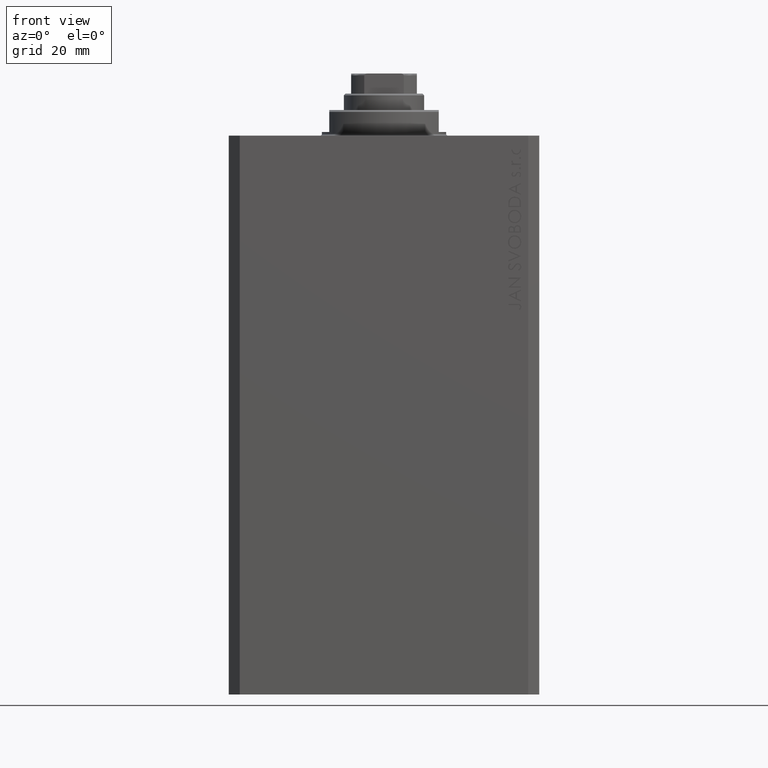
[diagram: clean part render]
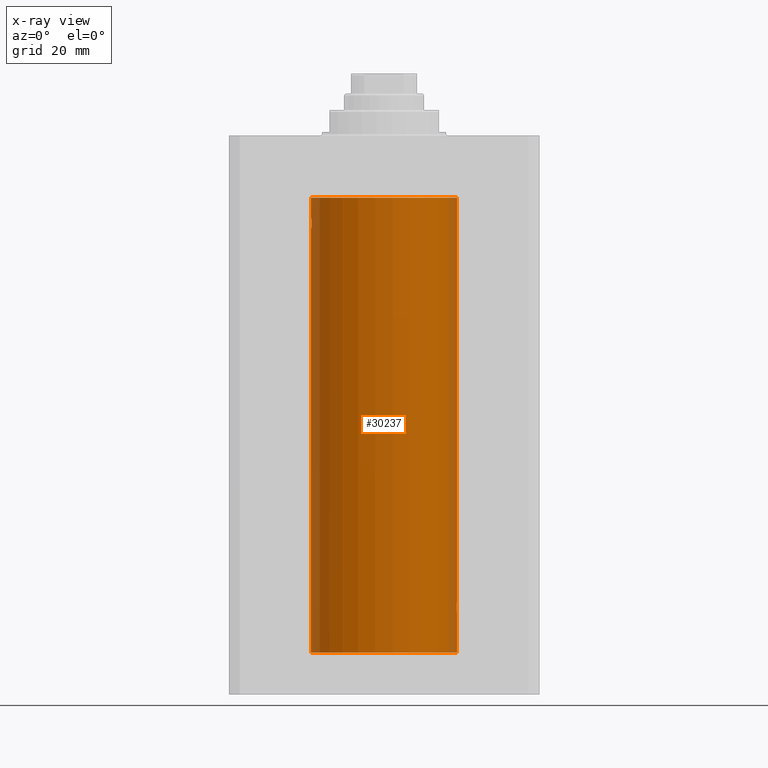
[diagram: x-ray — body ghosted, one internal face saturated and labeled with its STEP entity id]
A machine part, front view, then the same camera in x-ray: the body is ghosted and one INTERNAL B-rep face — a face not visible from any outside direction — is saturated and labeled: STEP entity #30237.
In plain terms, the highlighted cylindrical surface (partial cylindrical patch) has radius 20 mm, axis along (0, 0, 1).
Its self-contained STEP definition (entity closure, byte-faithful):
#147 = LINE ( 'NONE', #367, #17304 ) ;
#262 = FACE_OUTER_BOUND ( 'NONE', #30989, .T. ) ;
#352 = CARTESIAN_POINT ( 'NONE',  ( -20.00000000000000000, 2.449293598294706513E-15, -141.5999999999999943 ) ) ;
#367 = CARTESIAN_POINT ( 'NONE',  ( 20.00000000000000000, 0.000000000000000000, -141.5999999999999943 ) ) ;
#529 = EDGE_CURVE ( 'NONE', #33822, #23963, #44422, .T. ) ;
#1146 = CARTESIAN_POINT ( 'NONE',  ( -20.00000000000000000, -1.269718202421245235E-16, -22.00000000000000000 ) ) ;
#1905 = ORIENTED_EDGE ( 'NONE', *, *, #20098, .F. ) ;
#2066 = CARTESIAN_POINT ( 'NONE',  ( -20.00000000000000000, 2.449293598294706513E-15, -141.5999999999999943 ) ) ;
#3861 = CARTESIAN_POINT ( 'NONE',  ( 0.000000000000000000, 0.000000000000000000, -141.5999999999999943 ) ) ;
#3868 = CARTESIAN_POINT ( 'NONE',  ( 19.92464121718640868, -1.736076547215880561, -130.0015422135783751 ) ) ;
#5318 = CARTESIAN_POINT ( 'NONE',  ( 20.00000000000000000, -0.2612062508298598207, -127.0000000000000853 ) ) ;
#6661 = CIRCLE ( 'NONE', #40493, 20.00000000000000000 ) ;
#6778 = ORIENTED_EDGE ( 'NONE', *, *, #29489, .F. ) ;
#6892 = DIRECTION ( 'NONE',  ( -0.000000000000000000, -0.000000000000000000, 1.000000000000000000 ) ) ;
#7030 = CARTESIAN_POINT ( 'NONE',  ( -19.90987429971497491, -1.897222639860592031, -24.64630673924644100 ) ) ;
#7246 = CARTESIAN_POINT ( 'NONE',  ( 19.93674030556023524, -1.591123942389848223, -130.2187588700503227 ) ) ;
#7442 = EDGE_CURVE ( 'NONE', #39911, #13682, #42872, .T. ) ;
#7680 = CYLINDRICAL_SURFACE ( 'NONE', #29375, 20.00000000000000000 ) ;
#9046 = CARTESIAN_POINT ( 'NONE',  ( -20.00000000000000000, 2.449293598294706513E-15, -141.5999999999999943 ) ) ;
#9555 = CARTESIAN_POINT ( 'NONE',  ( -20.00000000000000000, -1.269718202421245235E-16, -22.00000000000000000 ) ) ;
#9958 = CARTESIAN_POINT ( 'NONE',  ( -19.92471783160912224, -1.735203193119891019, -25.00306556339602082 ) ) ;
#9970 = EDGE_CURVE ( 'NONE', #14376, #27112, #18638, .T. ) ;
#10416 = CARTESIAN_POINT ( 'NONE',  ( -19.96307487248084911, -1.228758402364232172, -25.59941524884030528 ) ) ;
#10614 = DIRECTION ( 'NONE',  ( -0.000000000000000000, -0.000000000000000000, 1.000000000000000000 ) ) ;
#10635 = CARTESIAN_POINT ( 'NONE',  ( -19.92459705242980661, -1.736582545981369519, -22.99932780860755699 ) ) ;
#10879 = DIRECTION ( 'NONE',  ( 1.000000000000000000, 0.000000000000000000, 0.000000000000000000 ) ) ;
#11632 = CARTESIAN_POINT ( 'NONE',  ( 0.000000000000000000, 0.000000000000000000, -17.00000000000000000 ) ) ;
#12535 = CARTESIAN_POINT ( 'NONE',  ( 19.96304361591165133, -1.229269670911809609, -127.4009562492831833 ) ) ;
#13122 = CARTESIAN_POINT ( 'NONE',  ( -19.99457699142850231, -0.5243189001515002889, -25.94755062882507346 ) ) ;
#13323 = CARTESIAN_POINT ( 'NONE',  ( 20.00000000000000000, 3.320656427414327395E-15, -131.0000000000000000 ) ) ;
#13572 = CARTESIAN_POINT ( 'NONE',  ( -20.00000000000000000, 2.449293582768784389E-15, -25.99999999999999645 ) ) ;
#13682 = VERTEX_POINT ( 'NONE', #16874 ) ;
#13883 = CARTESIAN_POINT ( 'NONE',  ( 19.94343050116685134, -1.506032346525476795, -127.6775485712697247 ) ) ;
#14027 = CARTESIAN_POINT ( 'NONE',  ( -19.91908554465556946, -1.797933656607911823, -23.11420923329271560 ) ) ;
#14234 = CARTESIAN_POINT ( 'NONE',  ( 19.91912874598169125, -1.797456133345315177, -129.8867487037038302 ) ) ;
#14376 = VERTEX_POINT ( 'NONE', #44026 ) ;
#14519 = EDGE_CURVE ( 'NONE', #33822, #35958, #6661, .T. ) ;
#15230 = DIRECTION ( 'NONE',  ( 1.000000000000000000, 0.000000000000000000, 0.000000000000000000 ) ) ;
#16817 = CARTESIAN_POINT ( 'NONE',  ( 19.90983652367462042, -1.897617924364794151, -128.3548402033379716 ) ) ;
#16874 = CARTESIAN_POINT ( 'NONE',  ( -20.00000000000000000, 2.449293598294706513E-15, -17.00000000000000000 ) ) ;
#16960 = CARTESIAN_POINT ( 'NONE',  ( -19.90603968831098669, -1.936551476643001646, -23.48351467081094057 ) ) ;
#17033 = CARTESIAN_POINT ( 'NONE',  ( 19.91915476385080197, -1.797169352086254390, -128.1126628205572331 ) ) ;
#17264 = CARTESIAN_POINT ( 'NONE',  ( 19.89974874213243794, -1.999999999999655609, -128.8677987384940309 ) ) ;
#17304 = VECTOR ( 'NONE', #21334, 1000.000000000000000 ) ;
#17739 = CARTESIAN_POINT ( 'NONE',  ( 20.00000000000000000, 0.000000000000000000, -141.5999999999999943 ) ) ;
#17845 = VECTOR ( 'NONE', #6892, 1000.000000000000000 ) ;
#17847 = CARTESIAN_POINT ( 'NONE',  ( 19.89974874213243439, -1.999999999999655609, -129.0000000000000000 ) ) ;
#18546 = EDGE_CURVE ( 'NONE', #23963, #39911, #20257, .T. ) ;
#18638 = B_SPLINE_CURVE_WITH_KNOTS ( 'NONE', 3,
 ( #17847, #40840, #27758, #41517, #41066, #14234, #3868, #7246, #27986, #23943, #23710, #31597, #37700, #13323 ),
 .UNSPECIFIED., .F., .F.,
 ( 4, 2, 2, 2, 2, 2, 4 ),
 ( 0.009386006266958988459, 0.009776776943204314174, 0.01016754761944964162, 0.01055831829569496734, 0.01094908897194029479, 0.01173063032443094622, 0.01251217167692159939 ),
 .UNSPECIFIED. ) ;
#20098 = EDGE_CURVE ( 'NONE', #33039, #25033, #147, .T. ) ;
#20257 = B_SPLINE_CURVE_WITH_KNOTS ( 'NONE', 3,
 ( #13572, #27098, #13122, #26887, #10416, #37255, #44234, #9958, #37926, #7030, #23724, #37481, #30713, #20340, #34104, #16960, #44457, #14027, #10635, #21027, #32057, #41529, #38819, #28648, #27771, #1146 ),
 .UNSPECIFIED., .F., .F.,
 ( 4, 2, 2, 2, 2, 2, 2, 2, 2, 2, 2, 2, 4 ),
 ( 0.006256819553329842284, 0.007038738568778816693, 0.007820657584227789366, 0.008211617091952273101, 0.008602576599676756836, 0.008993536107401240570, 0.009384495615125724305, 0.009775455122850208040, 0.01016641463057469177, 0.01055737413829917551, 0.01094833364602365751, 0.01173025266147262498, 0.01251217167692159245 ),
 .UNSPECIFIED. ) ;
#20340 = CARTESIAN_POINT ( 'NONE',  ( -19.89973863218036243, -2.000100592782549036, -23.86941128289164737 ) ) ;
#21027 = CARTESIAN_POINT ( 'NONE',  ( -19.93669678979813398, -1.591668229360191367, -22.78194580527848245 ) ) ;
#21334 = DIRECTION ( 'NONE',  ( -0.000000000000000000, -0.000000000000000000, 1.000000000000000000 ) ) ;
#21445 = DIRECTION ( 'NONE',  ( 1.000000000000000000, 0.000000000000000000, 0.000000000000000000 ) ) ;
#23710 = CARTESIAN_POINT ( 'NONE',  ( 19.97604812261521090, -1.007662572237611132, -130.7471082404733522 ) ) ;
#23724 = CARTESIAN_POINT ( 'NONE',  ( -19.90611141657401717, -1.935816449315122423, -24.51923512135276439 ) ) ;
#23801 = CARTESIAN_POINT ( 'NONE',  ( 19.92467362751852633, -1.735709893904983980, -127.9978039393058253 ) ) ;
#23812 = LINE ( 'NONE', #40936, #17845 ) ;
#23846 = CARTESIAN_POINT ( 'NONE',  ( -20.00000000000000000, 2.449293582768784389E-15, -25.99999999999999645 ) ) ;
#23943 = CARTESIAN_POINT ( 'NONE',  ( 19.96296989966237234, -1.230425635331418910, -130.5981187666769756 ) ) ;
#23963 = VERTEX_POINT ( 'NONE', #23846 ) ;
#24272 = ORIENTED_EDGE ( 'NONE', *, *, #28762, .T. ) ;
#25033 = VERTEX_POINT ( 'NONE', #36122 ) ;
#25499 = ORIENTED_EDGE ( 'NONE', *, *, #14519, .F. ) ;
#25539 = CARTESIAN_POINT ( 'NONE',  ( 20.00000000000000000, -1.553109350199128042E-23, -127.0000000000000000 ) ) ;
#25750 = DIRECTION ( 'NONE',  ( -0.000000000000000000, -0.000000000000000000, 1.000000000000000000 ) ) ;
#25934 = ORIENTED_EDGE ( 'NONE', *, *, #7442, .T. ) ;
#26074 = ORIENTED_EDGE ( 'NONE', *, *, #9970, .T. ) ;
#26887 = CARTESIAN_POINT ( 'NONE',  ( -19.97614991974273835, -1.005710574260838541, -25.74825913460018256 ) ) ;
#27098 = CARTESIAN_POINT ( 'NONE',  ( -20.00000000000000000, -0.2610801504281904384, -26.00000000000000000 ) ) ;
#27112 = VERTEX_POINT ( 'NONE', #31103 ) ;
#27758 = CARTESIAN_POINT ( 'NONE',  ( 19.90106527362735633, -1.987020983172497424, -129.2621458537985859 ) ) ;
#27771 = CARTESIAN_POINT ( 'NONE',  ( -20.00000000000000000, -0.2644051013330979694, -22.00000000000000000 ) ) ;
#27784 = CARTESIAN_POINT ( 'NONE',  ( 0.000000000000000000, 0.000000000000000000, -141.5999999999999943 ) ) ;
#27986 = CARTESIAN_POINT ( 'NONE',  ( 19.94337316053472264, -1.506783194222111044, -130.3215850766146389 ) ) ;
#28648 = CARTESIAN_POINT ( 'NONE',  ( -19.99450181871976184, -0.5270924491156651071, -22.05320515808201876 ) ) ;
#28762 = EDGE_CURVE ( 'NONE', #33039, #14376, #31982, .T. ) ;
#29375 = AXIS2_PLACEMENT_3D ( 'NONE', #3861, #10614, #21445 ) ;
#29489 = EDGE_CURVE ( 'NONE', #35958, #27112, #23812, .T. ) ;
#29681 = CARTESIAN_POINT ( 'NONE',  ( 19.99457156948952630, -0.5245703965536839819, -127.0525002876190541 ) ) ;
#29784 = ORIENTED_EDGE ( 'NONE', *, *, #529, .T. ) ;
#30237 = ADVANCED_FACE ( 'NONE', ( #262 ), #7680, .F. ) ;
#30713 = CARTESIAN_POINT ( 'NONE',  ( -19.89975896996866567, -1.999898234284059217, -24.13365196142448710 ) ) ;
#30989 = EDGE_LOOP ( 'NONE', ( #25499, #29784, #34447, #25934, #38351, #1905, #24272, #26074, #6778 ) ) ;
#31103 = CARTESIAN_POINT ( 'NONE',  ( 20.00000000000000000, 3.320656427414327395E-15, -131.0000000000000000 ) ) ;
#31597 = CARTESIAN_POINT ( 'NONE',  ( 19.99450726301180836, -0.5268413099739815975, -130.9468459871092989 ) ) ;
#31680 = CIRCLE ( 'NONE', #33125, 20.00000000000000000 ) ;
#31982 = B_SPLINE_CURVE_WITH_KNOTS ( 'NONE', 3,
 ( #36224, #5318, #29681, #43424, #12535, #13883, #41156, #23801, #17033, #16817, #34399, #33726, #17264, #43865 ),
 .UNSPECIFIED., .F., .F.,
 ( 4, 2, 2, 2, 2, 2, 4 ),
 ( 0.006256819553330525766, 0.007039116231737641005, 0.007821412910144756245, 0.008212561249348314732, 0.008603709588551871484, 0.008994857927755429972, 0.009386006266958988459 ),
 .UNSPECIFIED. ) ;
#32057 = CARTESIAN_POINT ( 'NONE',  ( -19.94333197382385947, -1.507328959728486240, -22.67903093152709815 ) ) ;
#32281 = VECTOR ( 'NONE', #25750, 1000.000000000000000 ) ;
#33039 = VERTEX_POINT ( 'NONE', #25539 ) ;
#33125 = AXIS2_PLACEMENT_3D ( 'NONE', #11632, #39347, #15230 ) ;
#33726 = CARTESIAN_POINT ( 'NONE',  ( 19.90106531167247184, -1.987021080928412342, -128.7377912701302591 ) ) ;
#33822 = VERTEX_POINT ( 'NONE', #352 ) ;
#34104 = CARTESIAN_POINT ( 'NONE',  ( -19.90104673894211018, -1.987205673487805191, -23.73922743968431348 ) ) ;
#34399 = CARTESIAN_POINT ( 'NONE',  ( 19.90607912840593130, -1.936147476084614460, -128.4819853815527892 ) ) ;
#34447 = ORIENTED_EDGE ( 'NONE', *, *, #18546, .T. ) ;
#35958 = VERTEX_POINT ( 'NONE', #17739 ) ;
#36105 = EDGE_CURVE ( 'NONE', #13682, #25033, #31680, .T. ) ;
#36122 = CARTESIAN_POINT ( 'NONE',  ( 20.00000000000000000, 0.000000000000000000, -17.00000000000000000 ) ) ;
#36224 = CARTESIAN_POINT ( 'NONE',  ( 20.00000000000000000, -1.553109350199128042E-23, -127.0000000000000000 ) ) ;
#36793 = DIRECTION ( 'NONE',  ( -0.000000000000000000, -0.000000000000000000, 1.000000000000000000 ) ) ;
#37255 = CARTESIAN_POINT ( 'NONE',  ( -19.94347168299867334, -1.505486175075769539, -25.32306668919470027 ) ) ;
#37481 = CARTESIAN_POINT ( 'NONE',  ( -19.90108393514801577, -1.986835489085811091, -24.26358144091414459 ) ) ;
#37700 = CARTESIAN_POINT ( 'NONE',  ( 20.00000000000000000, -0.2642773949967772706, -130.9999999999999716 ) ) ;
#37926 = CARTESIAN_POINT ( 'NONE',  ( -19.91919800395357143, -1.796691196322314443, -24.88829437207090933 ) ) ;
#38351 = ORIENTED_EDGE ( 'NONE', *, *, #36105, .T. ) ;
#38819 = CARTESIAN_POINT ( 'NONE',  ( -19.97602680192586533, -1.008108445278681486, -22.25313023696928383 ) ) ;
#39347 = DIRECTION ( 'NONE',  ( 0.000000000000000000, 0.000000000000000000, 1.000000000000000000 ) ) ;
#39911 = VERTEX_POINT ( 'NONE', #9555 ) ;
#40493 = AXIS2_PLACEMENT_3D ( 'NONE', #27784, #41766, #10879 ) ;
#40840 = CARTESIAN_POINT ( 'NONE',  ( 19.89974874213243083, -1.999999999999656053, -129.1320736180661868 ) ) ;
#40936 = CARTESIAN_POINT ( 'NONE',  ( 20.00000000000000000, 0.000000000000000000, -141.5999999999999943 ) ) ;
#41066 = CARTESIAN_POINT ( 'NONE',  ( 19.90981966846454299, -1.897793276286218855, -129.6446336132283932 ) ) ;
#41156 = CARTESIAN_POINT ( 'NONE',  ( 19.93679035661676480, -1.590502522866567459, -127.7804150277140565 ) ) ;
#41517 = CARTESIAN_POINT ( 'NONE',  ( 19.90607187811044199, -1.936221525612423777, -129.5177055533667101 ) ) ;
#41529 = CARTESIAN_POINT ( 'NONE',  ( -19.96293863536309487, -1.230936344679270933, -22.40225308445269548 ) ) ;
#41766 = DIRECTION ( 'NONE',  ( 0.000000000000000000, 0.000000000000000000, 1.000000000000000000 ) ) ;
#42872 = LINE ( 'NONE', #2066, #32281 ) ;
#43424 = CARTESIAN_POINT ( 'NONE',  ( 19.97612863609106171, -1.006156579624595482, -127.2519787850423256 ) ) ;
#43442 = VECTOR ( 'NONE', #36793, 1000.000000000000000 ) ;
#43865 = CARTESIAN_POINT ( 'NONE',  ( 19.89974874213243439, -1.999999999999655609, -129.0000000000000000 ) ) ;
#44026 = CARTESIAN_POINT ( 'NONE',  ( 19.89974874213243439, -1.999999999999655609, -129.0000000000000000 ) ) ;
#44234 = CARTESIAN_POINT ( 'NONE',  ( -19.93683391378735692, -1.589957321664204226, -25.22028945794464150 ) ) ;
#44422 = LINE ( 'NONE', #9046, #43442 ) ;
#44457 = CARTESIAN_POINT ( 'NONE',  ( -19.90978194174746818, -1.898187925611333871, -23.35651471266957557 ) ) ;